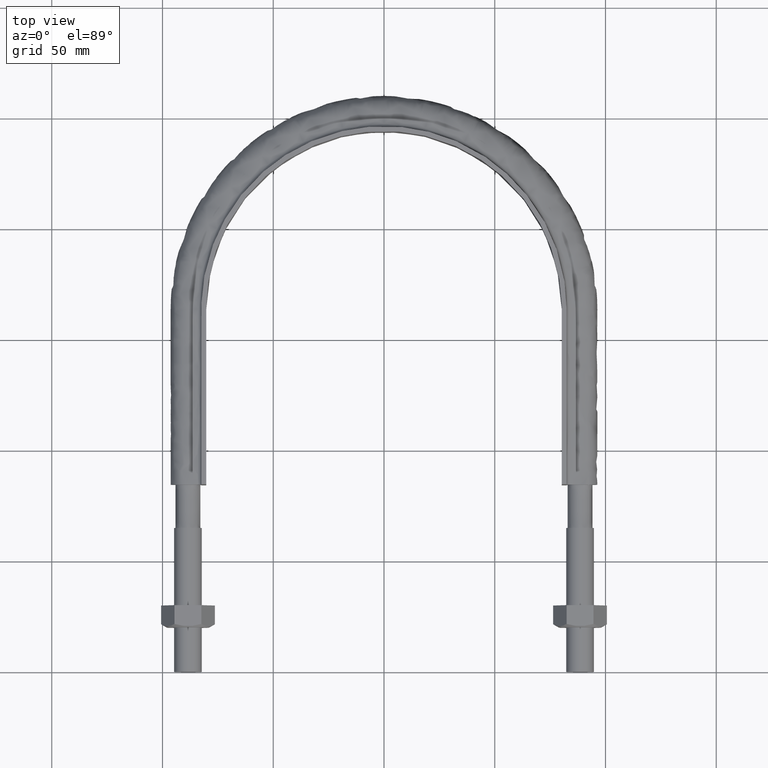
[diagram: clean part render]
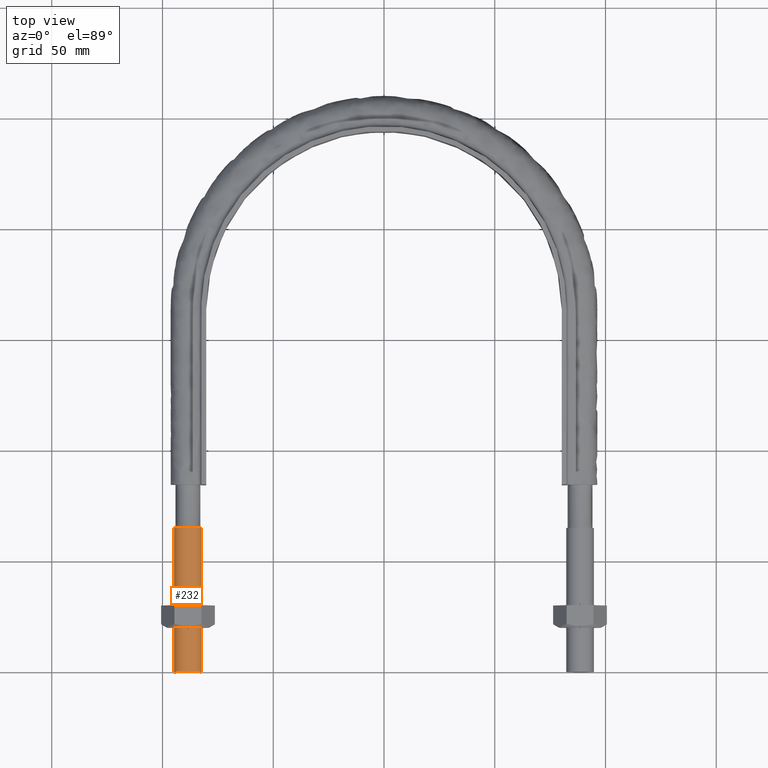
[diagram: same view with one face highlighted and labeled with its STEP entity id]
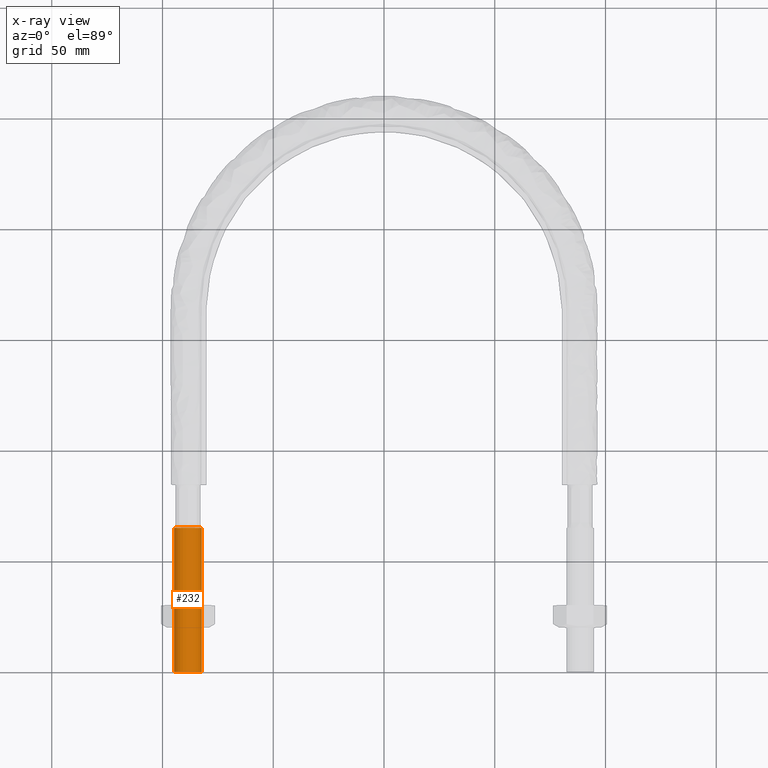
[diagram: x-ray of the same camera — body ghosted, the highlighted face saturated]
A machine part, top view. The second image highlights one B-rep face of the part: STEP entity #232.
The next image is the same camera in x-ray: the body ghosted, the highlighted face saturated — about 0% of this face is hidden behind the body in this view.
In plain terms, the highlighted cylindrical surface (bore or boss wall) has radius 6.25 mm, axis along (0, 1, -0).
Its self-contained STEP definition (entity closure, byte-faithful):
#232 = ADVANCED_FACE( '', ( #294, #295 ), #296, .T. );
#294 = FACE_OUTER_BOUND( '', #1306, .T. );
#295 = FACE_OUTER_BOUND( '', #1307, .T. );
#296 = CYLINDRICAL_SURFACE( '', #1308, 6.25000000000001 );
#1306 = EDGE_LOOP( '', ( #1477 ) );
#1307 = EDGE_LOOP( '', ( #1478 ) );
#1308 = AXIS2_PLACEMENT_3D( '', #1479, #1480, #1481 );
#1477 = ORIENTED_EDGE( '', *, *, #1675, .T. );
#1478 = ORIENTED_EDGE( '', *, *, #1676, .F. );
#1479 = CARTESIAN_POINT( '', ( -88.5000000000000, 65.0000000000000, -1.98998532496136E-014 ) );
#1480 = DIRECTION( '', ( 2.44921270764476E-016, 1.00000000000000, -3.06151588455594E-016 ) );
#1481 = DIRECTION( '', ( 1.00000000000000, -2.44921270764475E-016, 0.000000000000000 ) );
#1675 = EDGE_CURVE( '', #1759, #1759, #1760, .T. );
#1676 = EDGE_CURVE( '', #1761, #1761, #1762, .T. );
#1759 = VERTEX_POINT( '', #2073 );
#1760 = CIRCLE( '', #2074, 6.25000000000001 );
#1761 = VERTEX_POINT( '', #2075 );
#1762 = CIRCLE( '', #2076, 6.25000000000001 );
#2073 = CARTESIAN_POINT( '', ( -82.2500000000000, 65.0000000000000, -1.98998532496136E-014 ) );
#2074 = AXIS2_PLACEMENT_3D( '', #2325, #2326, #2327 );
#2075 = CARTESIAN_POINT( '', ( -82.2500000000000, 2.01447745203781E-014, 0.000000000000000 ) );
#2076 = AXIS2_PLACEMENT_3D( '', #2328, #2329, #2330 );
#2325 = CARTESIAN_POINT( '', ( -88.5000000000000, 65.0000000000000, -1.98998532496136E-014 ) );
#2326 = DIRECTION( '', ( -2.44921270764476E-016, -1.00000000000000, 3.06151588455594E-016 ) );
#2327 = DIRECTION( '', ( 1.00000000000000, -2.44921270764475E-016, 0.000000000000000 ) );
#2328 = CARTESIAN_POINT( '', ( -88.5000000000000, 2.16755324626561E-014, 0.000000000000000 ) );
#2329 = DIRECTION( '', ( -2.44921270764476E-016, -1.00000000000000, 3.06151588455594E-016 ) );
#2330 = DIRECTION( '', ( 1.00000000000000, -2.44921270764475E-016, 0.000000000000000 ) );